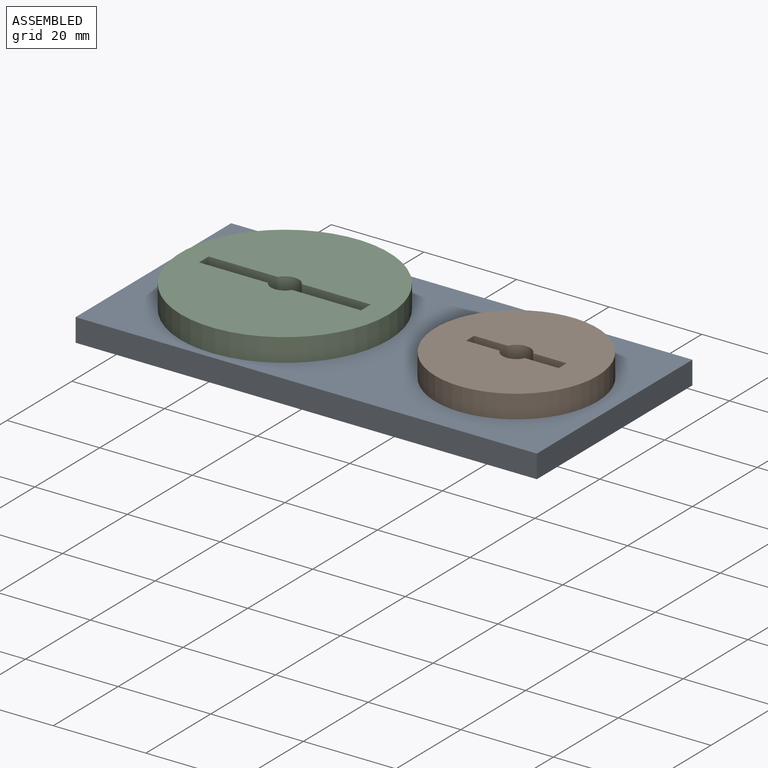
[diagram: assembled view]
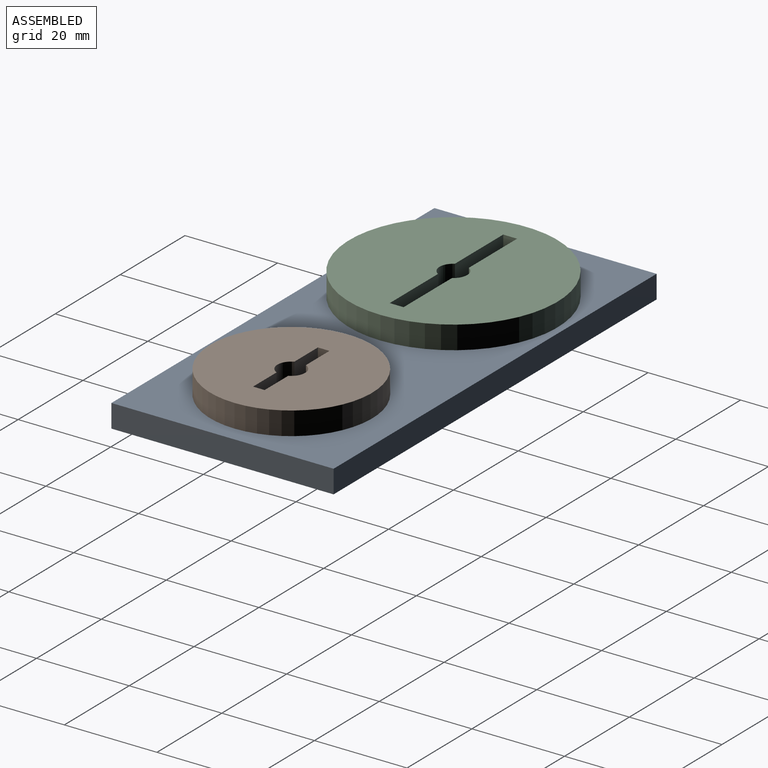
[diagram: assembled view, second angle]
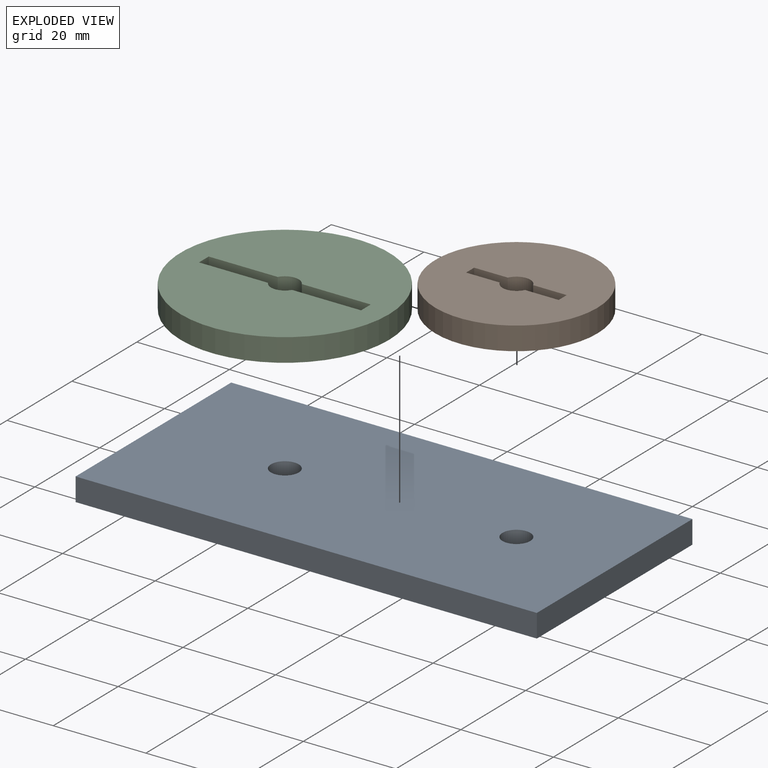
[diagram: exploded view]
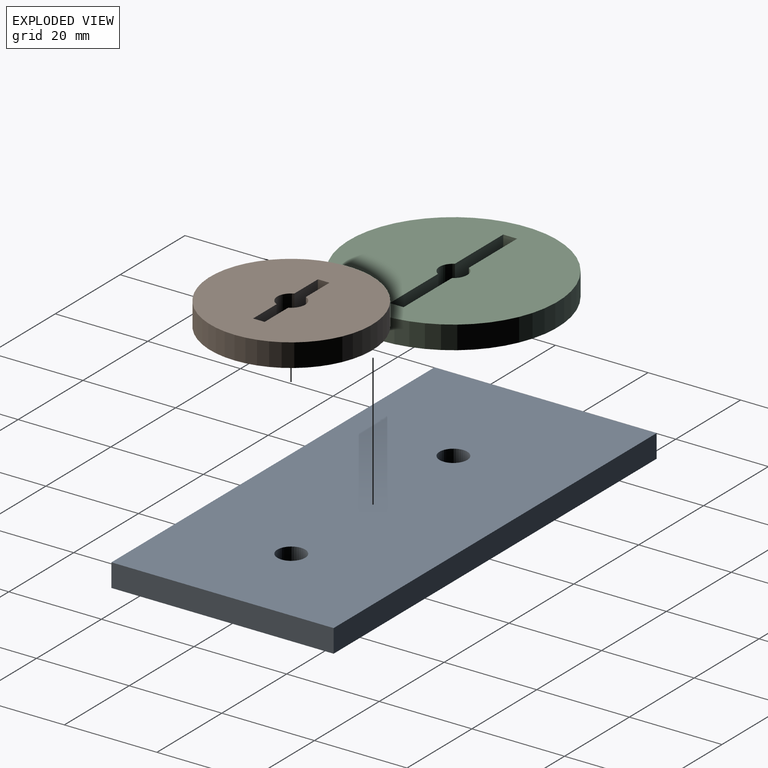
[diagram: exploded view, second angle]
ASSEMBLY  parts=3 mates=2
PART A: 8 faces, bbox 99.6x48x5 mm
  f0: plane 99.61x5mm, normal (0,-1,0), area 498mm2, adj f1,f4,f6,f7
  f1: plane 47.98x5mm, normal (1,0,0), area 239.9mm2, adj f0,f2,f6,f7
  f2: plane 99.61x5mm, normal (0,1,0), area 498mm2, adj f1,f4,f6,f7
  f3: cylinder r=3mm len=6mm, axis (0,0,1), area 94.2mm2, adj f6,f7
  f4: plane 47.98x5mm, normal (-1,0,0), area 239.9mm2, adj f0,f2,f6,f7
  f5: cylinder r=3mm len=6mm, axis (0,0,1), area 94.2mm2, adj f6,f7
  f6: plane 99.61x47.98mm, normal (0,0,-1), area 4723.1mm2, adj f0,f1,f2,f3,f4,f5
  f7: plane 99.61x47.98mm, normal (0,0,1), area 4723.1mm2, adj f0,f1,f2,f3,f4,f5
PART B: 11 faces, bbox 35x35x5 mm
  f0: cylinder r=3mm len=5.45mm, axis (0,0,-1), area 34.2mm2, adj f1,f7,f9,f10
  f1: plane 7.27x5mm, normal (0,1,0), area 36.4mm2, adj f0,f2,f9,f10
  f2: plane 5x2.5mm, normal (1,0,0), area 12.5mm2, adj f1,f3,f9,f10
  f3: plane 7.27x5mm, normal (0,-1,0), area 36.4mm2, adj f2,f4,f9,f10
  f4: cylinder r=3mm len=5.45mm, axis (0,0,-1), area 34.2mm2, adj f3,f5,f9,f10
  f5: plane 7.27x5mm, normal (0,-1,0), area 36.4mm2, adj f4,f6,f9,f10
  f6: plane 5x2.5mm, normal (-1,0,0), area 12.5mm2, adj f5,f7,f9,f10
  f7: plane 7.27x5mm, normal (0,1,0), area 36.4mm2, adj f0,f6,f9,f10
  f8: cylinder r=17.5mm len=35mm, axis (0,0,-1), area 549.8mm2, adj f9,f10
  f9: plane 35x35mm, normal (0,0,1), area 898.4mm2, adj f0,f1,f2,f3,f4,f5,f6,f7
  f10: plane 35x35mm, normal (0,0,-1), area 898.4mm2, adj f0,f1,f2,f3,f4,f5,f6,f7
PART C: 11 faces, bbox 45x45x5 mm
  f0: cylinder r=3mm len=5.2mm, axis (0,0,-1), area 31.4mm2, adj f1,f7,f9,f10
  f1: plane 14.9x5mm, normal (0,1,0), area 74.5mm2, adj f0,f2,f9,f10
  f2: plane 5x3mm, normal (1,0,0), area 15mm2, adj f1,f3,f9,f10
  f3: plane 14.9x5mm, normal (0,-1,0), area 74.5mm2, adj f2,f4,f9,f10
  f4: cylinder r=3mm len=5.2mm, axis (0,0,-1), area 31.4mm2, adj f3,f5,f9,f10
  f5: plane 14.9x5mm, normal (0,-1,0), area 74.5mm2, adj f4,f6,f9,f10
  f6: plane 5x3mm, normal (-1,0,0), area 15mm2, adj f5,f7,f9,f10
  f7: plane 14.9x5mm, normal (0,1,0), area 74.5mm2, adj f0,f6,f9,f10
  f8: cylinder r=22.5mm len=45mm, axis (0,0,-1), area 706.9mm2, adj f9,f10
  f9: plane 45x45mm, normal (0,0,1), area 1474.4mm2, adj f0,f1,f2,f3,f4,f5,f6,f7
  f10: plane 45x45mm, normal (0,0,-1), area 1474.4mm2, adj f0,f1,f2,f3,f4,f5,f6,f7
PLACE A at identity fixed
PLACE B at identity
PLACE C at identity
MATE revolute A.f3 <-> C.f0  axis (0,0,1) through (0,0,0)mm
MATE revolute A.f5 <-> B.f4  axis (0,0,1) through (50,0,0)mm
